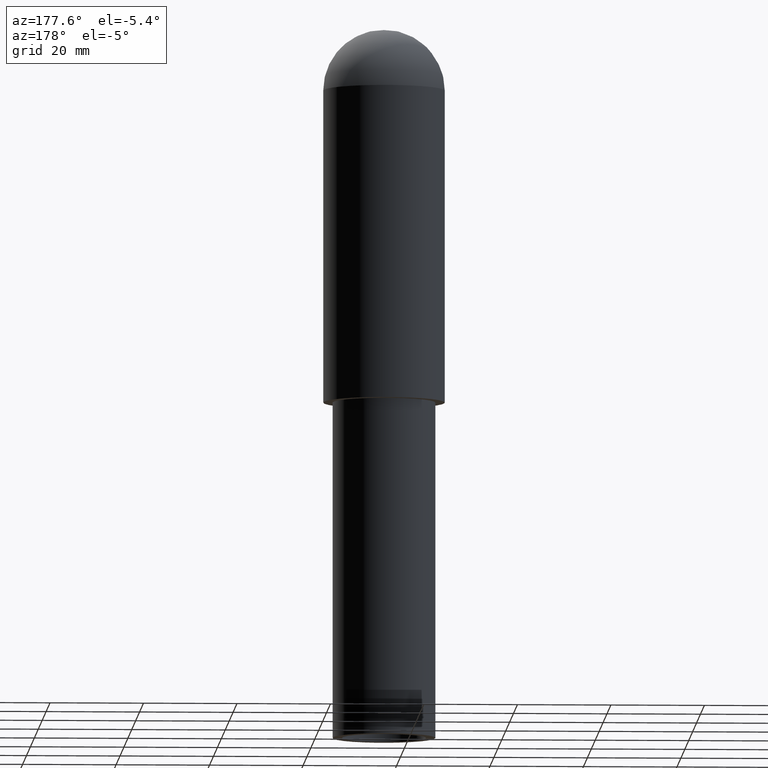
[diagram: clean part render]
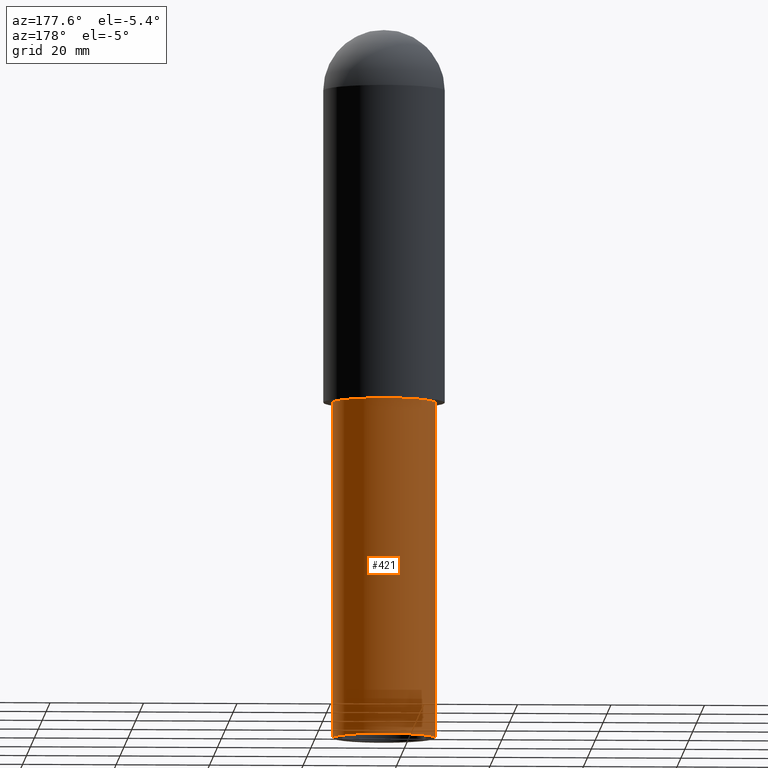
[diagram: same view with one face highlighted and labeled with its STEP entity id]
A machine part, auxiliary view. The second image highlights one B-rep face of the part: STEP entity #421.
In plain terms, the highlighted cylindrical surface (partial cylindrical patch) has radius 11 mm, axis along (0, 0, 1).
Its self-contained STEP definition (entity closure, byte-faithful):
#49=CARTESIAN_POINT('',(-6.716946060098080,-1.613904443833870,0.0));
#50=VERTEX_POINT('',#49);
#51=CARTESIAN_POINT('',(-6.716946060098080,-1.613904443833870,72.0));
#52=VERTEX_POINT('',#51);
#53=CARTESIAN_POINT('',(-6.716946060098080,-1.613904443833870,0.0));
#54=DIRECTION('',(0.0,0.0,1.0));
#55=VECTOR('',#54,72.0);
#56=LINE('',#53,#55);
#57=EDGE_CURVE('',#50,#52,#56,.T.);
#59=CARTESIAN_POINT('',(15.283053939901921,-1.613904443833870,0.0));
#60=VERTEX_POINT('',#59);
#68=CARTESIAN_POINT('',(15.283053939901915,-1.613904443833868,72.0));
#69=VERTEX_POINT('',#68);
#70=CARTESIAN_POINT('',(15.283053939901915,-1.613904443833868,72.0));
#71=DIRECTION('',(0.0,0.0,-1.0));
#72=VECTOR('',#71,72.0);
#73=LINE('',#70,#72);
#74=EDGE_CURVE('',#69,#60,#73,.T.);
#304=CARTESIAN_POINT('',(4.283053939901920,-1.613904443833871,72.0));
#305=DIRECTION('',(0.0,0.0,-1.0));
#306=DIRECTION('',(-1.0,0.0,0.0));
#307=AXIS2_PLACEMENT_3D('',#304,#305,#306);
#308=CIRCLE('',#307,11.0);
#309=EDGE_CURVE('',#52,#69,#308,.T.);
#404=CARTESIAN_POINT('',(4.283053939901920,-1.613904443833871,0.0));
#405=DIRECTION('',(0.0,0.0,1.0));
#406=DIRECTION('',(-1.0,0.0,0.0));
#407=AXIS2_PLACEMENT_3D('',#404,#405,#406);
#408=CYLINDRICAL_SURFACE('',#407,11.0);
#409=ORIENTED_EDGE('',*,*,#57,.T.);
#410=ORIENTED_EDGE('',*,*,#309,.T.);
#411=ORIENTED_EDGE('',*,*,#74,.T.);
#412=CARTESIAN_POINT('',(4.283053939901920,-1.613904443833871,0.0));
#413=DIRECTION('',(0.0,0.0,-1.0));
#414=DIRECTION('',(-1.0,0.0,0.0));
#415=AXIS2_PLACEMENT_3D('',#412,#413,#414);
#416=CIRCLE('',#415,11.0);
#417=EDGE_CURVE('',#50,#60,#416,.T.);
#418=ORIENTED_EDGE('',*,*,#417,.F.);
#419=EDGE_LOOP('',(#409,#410,#411,#418));
#420=FACE_OUTER_BOUND('',#419,.T.);
#421=ADVANCED_FACE('',(#420),#408,.T.);